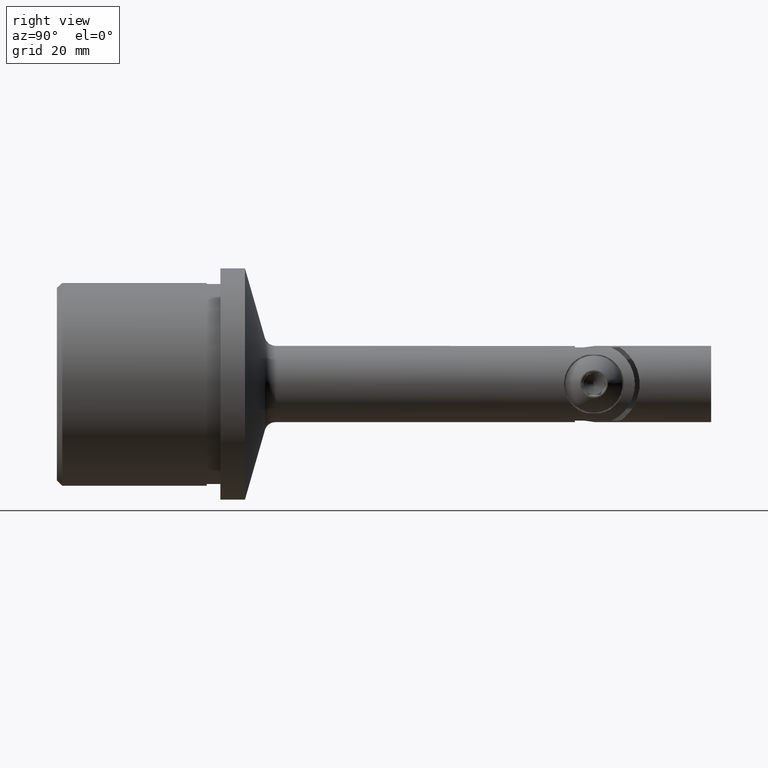
[diagram: clean part render]
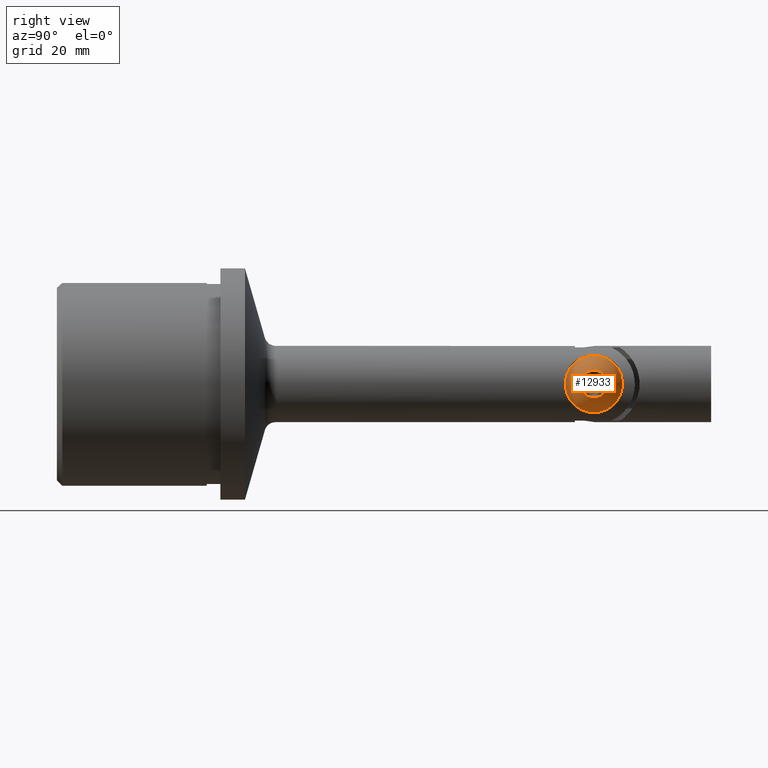
[diagram: same view with one face highlighted and labeled with its STEP entity id]
A machine part, right view. The second image highlights one B-rep face of the part: STEP entity #12933.
In plain terms, the highlighted spherical surface has radius 5.5869 mm.
Its self-contained STEP definition (entity closure, byte-faithful):
#972 = DIRECTION ( 'NONE',  ( 0.000000000000000000, -1.000000000000000000, 0.000000000000000000 ) ) ;
#1485 = VERTEX_POINT ( 'NONE', #6473 ) ;
#1845 = FACE_OUTER_BOUND ( 'NONE', #12111, .T. ) ;
#2245 = EDGE_LOOP ( 'NONE', ( #12091 ) ) ;
#3805 = SPHERICAL_SURFACE ( 'NONE', #11836, 5.586852254659162575 ) ;
#5049 = CARTESIAN_POINT ( 'NONE',  ( 0.000000000000000000, 0.000000000000000000, 0.000000000000000000 ) ) ;
#5461 = DIRECTION ( 'NONE',  ( 0.000000000000000000, 0.000000000000000000, -1.000000000000000000 ) ) ;
#5579 = AXIS2_PLACEMENT_3D ( 'NONE', #6639, #6554, #5461 ) ;
#6473 = CARTESIAN_POINT ( 'NONE',  ( 0.000000000000000000, 3.061349999999997351, -5.250000000000039968 ) ) ;
#6554 = DIRECTION ( 'NONE',  ( 0.000000000000000000, -1.000000000000000000, 0.000000000000000000 ) ) ;
#6639 = CARTESIAN_POINT ( 'NONE',  ( 0.000000000000000000, 3.061349999999997351, 0.000000000000000000 ) ) ;
#7101 = ORIENTED_EDGE ( 'NONE', *, *, #11106, .T. ) ;
#8450 = CIRCLE ( 'NONE', #5579, 5.250000000000039968 ) ;
#9526 = CARTESIAN_POINT ( 'NONE',  ( 0.000000000000000000, 0.000000000000000000, -2.548051076758520939 ) ) ;
#9610 = CARTESIAN_POINT ( 'NONE',  ( 0.000000000000000000, 4.971956740119527929, 0.000000000000000000 ) ) ;
#11106 = EDGE_CURVE ( 'NONE', #1485, #1485, #8450, .T. ) ;
#11620 = DIRECTION ( 'NONE',  ( 1.000000000000000000, 0.000000000000000000, 0.000000000000000000 ) ) ;
#11740 = CIRCLE ( 'NONE', #13589, 2.548051076758520939 ) ;
#11836 = AXIS2_PLACEMENT_3D ( 'NONE', #9610, #12835, #11620 ) ;
#12091 = ORIENTED_EDGE ( 'NONE', *, *, #12733, .F. ) ;
#12111 = EDGE_LOOP ( 'NONE', ( #7101 ) ) ;
#12386 = VERTEX_POINT ( 'NONE', #9526 ) ;
#12565 = DIRECTION ( 'NONE',  ( 0.000000000000000000, 0.000000000000000000, -1.000000000000000000 ) ) ;
#12733 = EDGE_CURVE ( 'NONE', #12386, #12386, #11740, .T. ) ;
#12835 = DIRECTION ( 'NONE',  ( -0.000000000000000000, 0.000000000000000000, 1.000000000000000000 ) ) ;
#12933 = ADVANCED_FACE ( 'NONE', ( #1845, #13062 ), #3805, .T. ) ;
#13062 = FACE_OUTER_BOUND ( 'NONE', #2245, .T. ) ;
#13589 = AXIS2_PLACEMENT_3D ( 'NONE', #5049, #972, #12565 ) ;